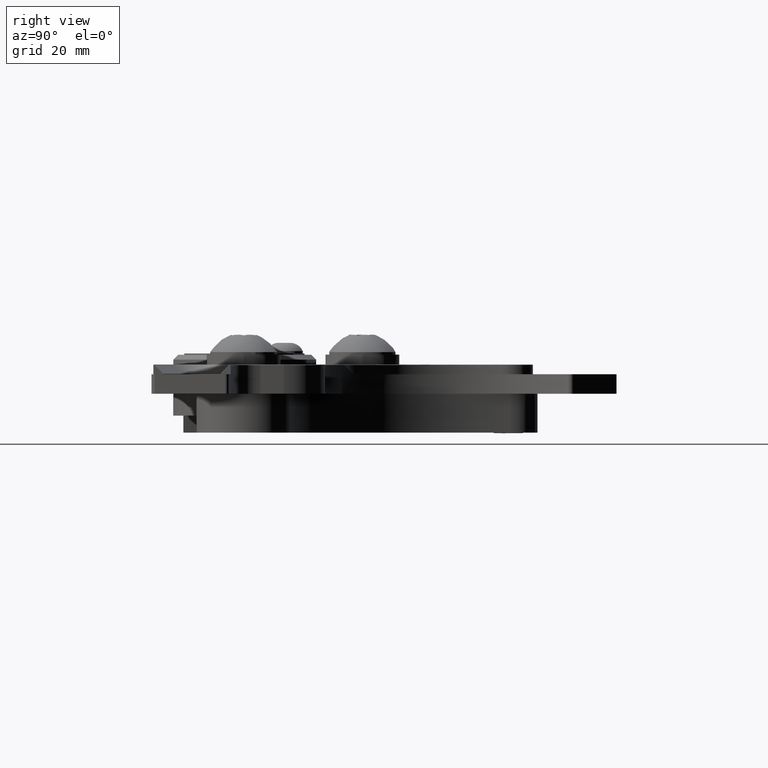
[diagram: clean part render]
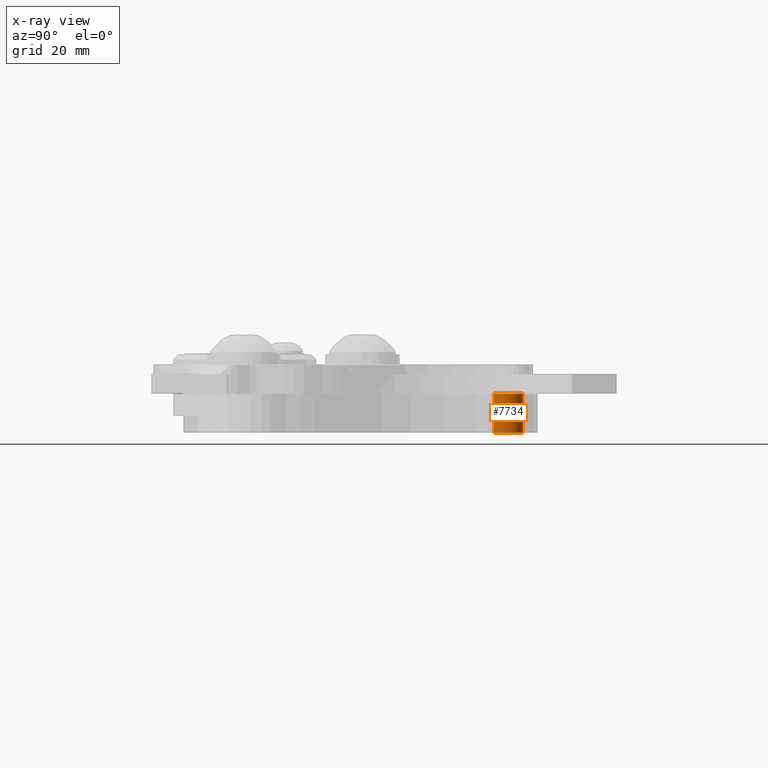
[diagram: x-ray — body ghosted, one internal face saturated and labeled with its STEP entity id]
A machine part, right view, then the same camera in x-ray: the body is ghosted and one INTERNAL B-rep face — a face not visible from any outside direction — is saturated and labeled: STEP entity #7734.
In plain terms, the highlighted cylindrical surface (bore or boss wall) has radius 2.9972 mm, axis along (0, -0, -1).
Its self-contained STEP definition (entity closure, byte-faithful):
#147 = CIRCLE ( 'NONE', #2465, 0.1180000000000002200 ) ;
#186 = CIRCLE ( 'NONE', #2483, 0.1180000000000002200 ) ;
#341 = CARTESIAN_POINT ( 'NONE',  ( 6.470850393700847500, -7.125834463381091100, 0.0000000000000000000 ) ) ;
#342 = DIRECTION ( 'NONE',  ( 0.0000000000000000000, 0.0000000000000000000, 1.000000000000000000 ) ) ;
#343 = DIRECTION ( 'NONE',  ( 1.000000000000000000, 0.0000000000000000000, 0.0000000000000000000 ) ) ;
#439 = CARTESIAN_POINT ( 'NONE',  ( 6.470850393700847500, -7.125834463381091100, -0.3149606299212601200 ) ) ;
#440 = DIRECTION ( 'NONE',  ( -0.0000000000000000000, -0.0000000000000000000, 1.000000000000000000 ) ) ;
#441 = DIRECTION ( 'NONE',  ( -1.000000000000000000, 0.0000000000000000000, 0.0000000000000000000 ) ) ;
#2216 = EDGE_CURVE ( 'NONE', #4865, #4865, #147, .T. ) ;
#2245 = EDGE_CURVE ( 'NONE', #4875, #4875, #186, .T. ) ;
#2465 = AXIS2_PLACEMENT_3D ( 'NONE', #341, #342, #343 ) ;
#2483 = AXIS2_PLACEMENT_3D ( 'NONE', #439, #440, #441 ) ;
#4220 = DIRECTION ( 'NONE',  ( 1.000000000000000000, 0.0000000000000000000, 0.0000000000000000000 ) ) ;
#4227 = CARTESIAN_POINT ( 'NONE',  ( 6.470850393700847500, -7.125834463381091100, -5.558183107328619400 ) ) ;
#4228 = DIRECTION ( 'NONE',  ( 0.0000000000000000000, 0.0000000000000000000, 1.000000000000000000 ) ) ;
#4375 = FACE_OUTER_BOUND ( 'NONE', #8169, .T. ) ;
#4380 = FACE_OUTER_BOUND ( 'NONE', #7872, .T. ) ;
#4382 = CYLINDRICAL_SURFACE ( 'NONE', #8510, 0.1180000000000002200 ) ;
#4865 = VERTEX_POINT ( 'NONE', #6749 ) ;
#4875 = VERTEX_POINT ( 'NONE', #6757 ) ;
#6749 = CARTESIAN_POINT ( 'NONE',  ( 6.588850393700847800, -7.125834463381091100, 0.0000000000000000000 ) ) ;
#6757 = CARTESIAN_POINT ( 'NONE',  ( 6.352850393700847100, -7.125834463381091100, -0.3149606299212601200 ) ) ;
#7734 = ADVANCED_FACE ( 'NONE', ( #4375, #4380 ), #4382, .F. ) ;
#7868 = ORIENTED_EDGE ( 'NONE', *, *, #2216, .T. ) ;
#7872 = EDGE_LOOP ( 'NONE', ( #7879 ) ) ;
#7879 = ORIENTED_EDGE ( 'NONE', *, *, #2245, .F. ) ;
#8169 = EDGE_LOOP ( 'NONE', ( #7868 ) ) ;
#8510 = AXIS2_PLACEMENT_3D ( 'NONE', #4227, #4228, #4220 ) ;